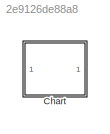
MODEL slx_2e9126de88a8
KIND model
CONFIG AbsTol = auto
CONFIG EnableMultiTasking = off
CONFIG FixedStep = auto
CONFIG MaxStep = auto
CONFIG MinStep = auto
CONFIG RelTol = 1e-3
CONFIG SampleTimeConstraint = Unconstrained
CONFIG Solver = VariableStepAuto
CONFIG SolverName = VariableStepAuto
CONFIG StartTime = 0.0
CONFIG StopTime = 10.0
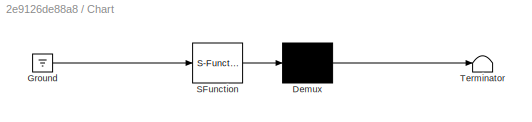
BLOCK [SubSystem] Chart
  ErrorFcn = Stateflow.Translate.translate
  PermitHierarchicalResolution = ExplicitOnly
  Ports = []
  RequestExecContextInheritance = off
  SFBlockType = Chart
  TreatAsAtomicUnit = on
BLOCK [Demux] Chart/ Demux 
  Outputs = 1
  Ports = [1, 1]
BLOCK [Ground] Chart/ Ground 
BLOCK [S-Function] Chart/ SFunction 
  EnableBusSupport = on
  FunctionName = sf_sfun
  PortCounts = [1 1]
  Ports = [1, 1]
  SFcnIsStateOwnerBlock = off
  SFunctionDeploymentMode = off
  Tag = Stateflow S-Function 3
BLOCK [Terminator] Chart/ Terminator 
CHART Chart states=3 transitions=4
  STATE_LABEL 'All\ndu: x_dot=y;'
  STATE_LABEL 'A\nen: y=1;\ndu: t_dot=1;'
  STATE_LABEL 'B\nen: y=-1;\ndu: t_dot=1;'
  STATE_LABEL '{t=1;}'
  STATE_LABEL '[t>=1]{t=0;}'
  STATE_LABEL '[t>=1]{t=0;}'
  STATE_LABEL 'A\nen: y=1;\ndu: t_dot=1;'
  STATE_LABEL 'B\nen: y=-1;\ndu: t_dot=1;'
CHART  states=0 transitions=0
